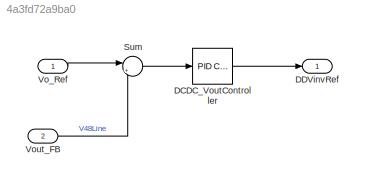
MODEL slx_4a3fd72a9ba0
KIND model
CONFIG AbsTol = 1e-3
CONFIG EnableMultiTasking = off
CONFIG FixedStep = auto
CONFIG MaxStep = auto
CONFIG MinStep = auto
CONFIG RelTol = 1e-3
CONFIG SampleTimeConstraint = Unconstrained
CONFIG SolverName = ode23t
CONFIG StartTime = 0.0
CONFIG StopTime = 20
BLOCK [Reference] DCDC_VoutController  REF=slpidlib/PID Controller
  SourceBlock = slpidlib/PID Controller
  SourceType = PID 1dof
BLOCK [Outport] DDVinvRef
  OutDataTypeStr = double
  PortDimensions = 1
  SamplingMode = Sample based
  SignalType = real
BLOCK [Sum] Sum
  Inputs = |+-
BLOCK [Inport] Vo_Ref
  OutDataTypeStr = double
  PortDimensions = 1
  SamplingMode = Sample based
  SignalType = real
BLOCK [Inport] Vout_FB
  Port = 2
LINE DCDC_VoutController:1 -> DDVinvRef:1
LINE Sum:1 -> DCDC_VoutController:1
LINE Vo_Ref:1 -> Sum:1
LINE Vout_FB:1 -> Sum:2
